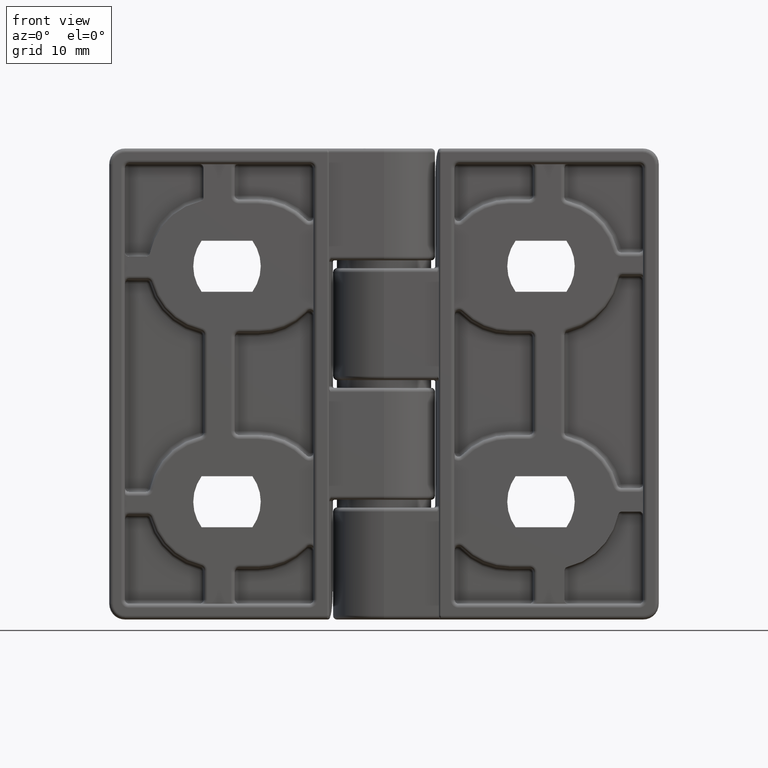
[diagram: clean part render]
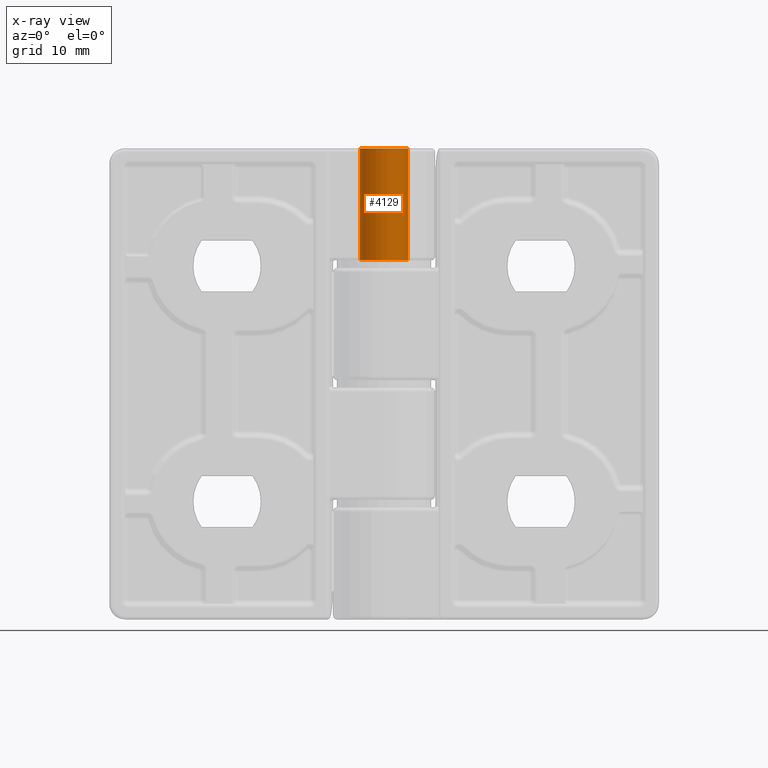
[diagram: x-ray — body ghosted, one internal face saturated and labeled with its STEP entity id]
A machine part, front view, then the same camera in x-ray: the body is ghosted and one INTERNAL B-rep face — a face not visible from any outside direction — is saturated and labeled: STEP entity #4129.
In plain terms, the highlighted cylindrical surface (bore or boss wall) has radius 3.05 mm, axis along (0, -0, -1).
Its self-contained STEP definition (entity closure, byte-faithful):
#137=FACE_BOUND('',#1195,.T.);
#746=CYLINDRICAL_SURFACE('',#4472,3.05);
#899=FACE_OUTER_BOUND('',#1194,.T.);
#1194=EDGE_LOOP('',(#2972));
#1195=EDGE_LOOP('',(#2973));
#1496=CIRCLE('',#4468,3.05);
#1499=CIRCLE('',#4473,3.05);
#1856=VERTEX_POINT('',#6905);
#1859=VERTEX_POINT('',#6913);
#2251=EDGE_CURVE('',#1856,#1856,#1496,.T.);
#2254=EDGE_CURVE('',#1859,#1859,#1499,.T.);
#2972=ORIENTED_EDGE('',*,*,#2254,.T.);
#2973=ORIENTED_EDGE('',*,*,#2251,.T.);
#4129=ADVANCED_FACE('',(#899,#137),#746,.F.);
#4468=AXIS2_PLACEMENT_3D('',#6906,#5236,#5237);
#4472=AXIS2_PLACEMENT_3D('',#6912,#5244,#5245);
#4473=AXIS2_PLACEMENT_3D('',#6914,#5246,#5247);
#5236=DIRECTION('center_axis',(0.,-1.,0.));
#5237=DIRECTION('ref_axis',(1.,0.,0.));
#5244=DIRECTION('center_axis',(0.,1.,0.));
#5245=DIRECTION('ref_axis',(1.,0.,0.));
#5246=DIRECTION('center_axis',(0.,1.,0.));
#5247=DIRECTION('ref_axis',(-1.,0.,0.));
#6905=CARTESIAN_POINT('',(-3.05,-30.,0.));
#6906=CARTESIAN_POINT('Origin',(0.,-30.,0.));
#6912=CARTESIAN_POINT('Origin',(0.,-30.,0.));
#6913=CARTESIAN_POINT('',(-3.05,-15.75,0.));
#6914=CARTESIAN_POINT('Origin',(0.,-15.75,0.));